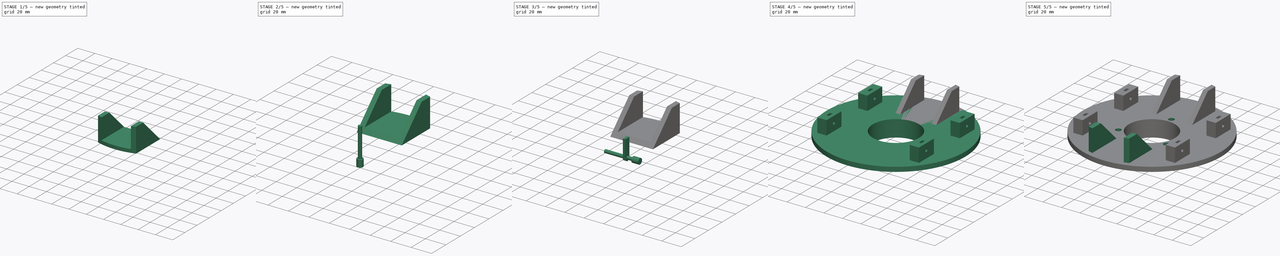
[diagram: build sequence overview — one tinted view per stage of 5, left to right]
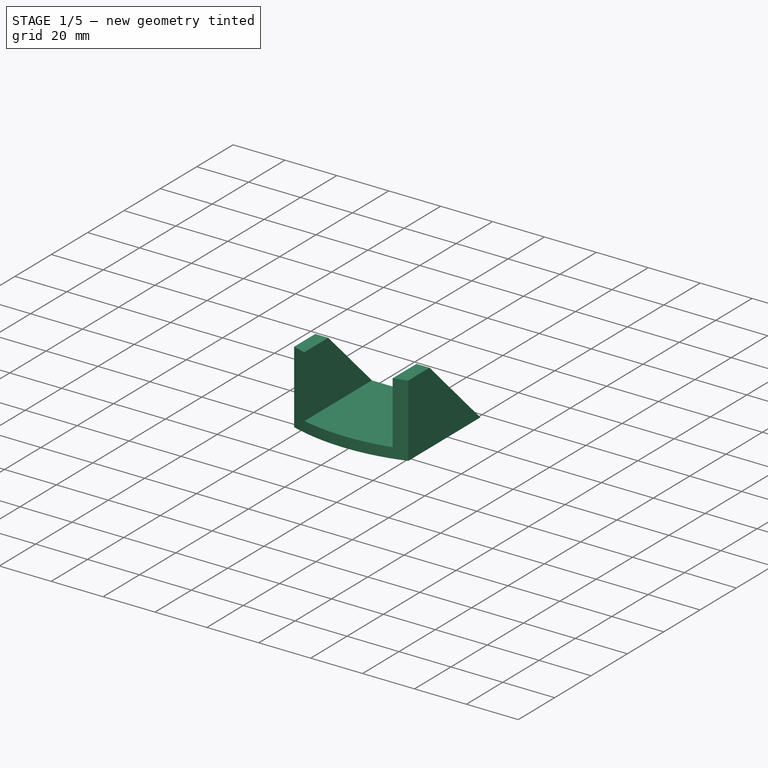
[diagram: stage 1 of 5 — iso view after this stage's code; geometry added in this stage tinted green]
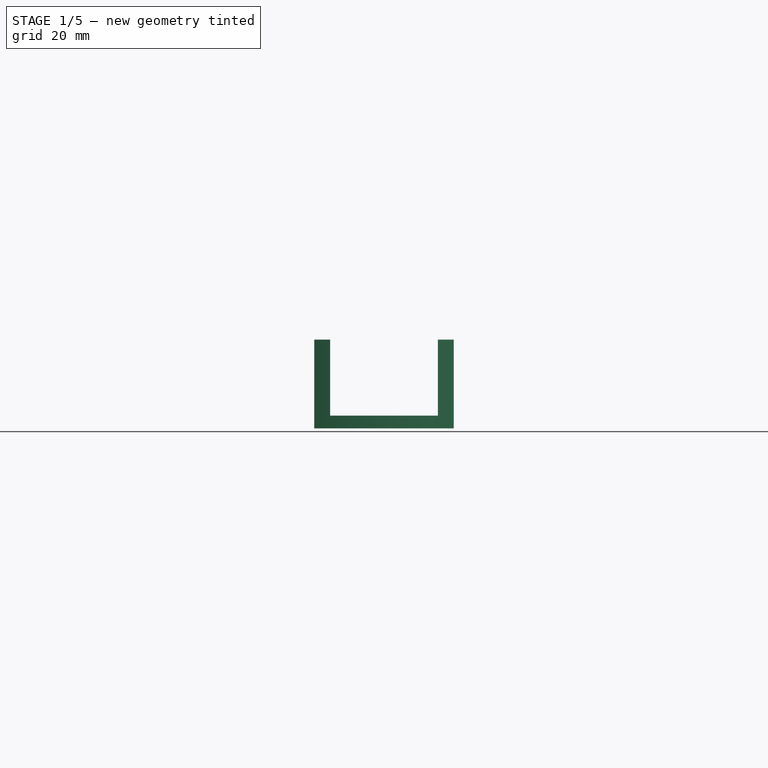
[diagram: stage 1 of 5 — front view after this stage's code; geometry added in this stage tinted green]
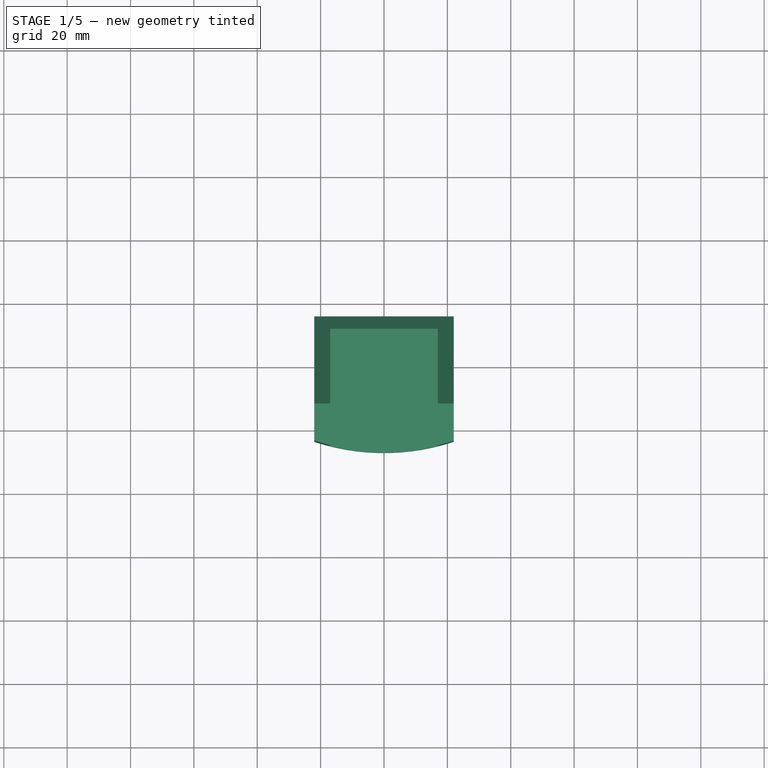
[diagram: stage 1 of 5 — top view after this stage's code; geometry added in this stage tinted green]
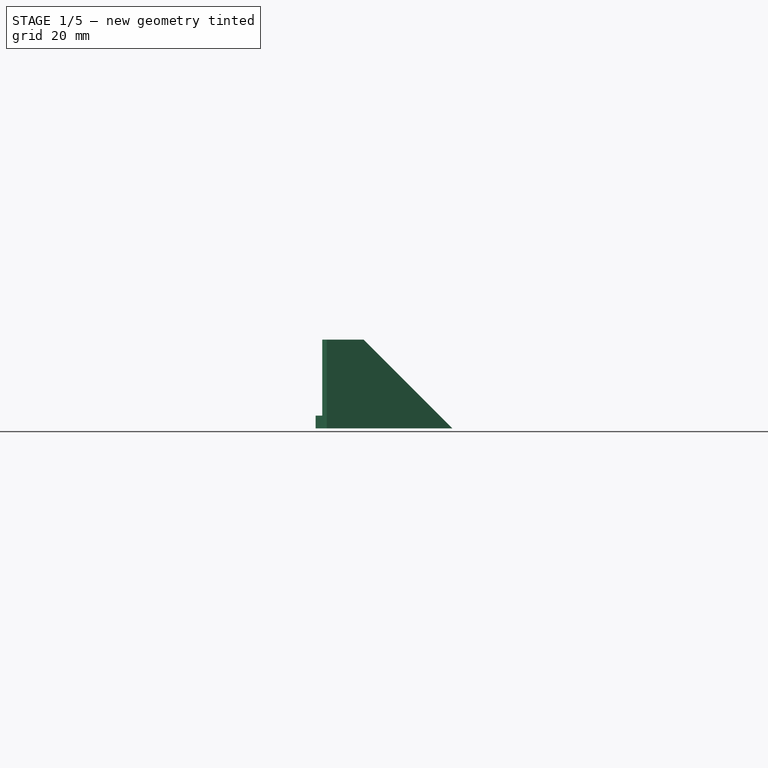
[diagram: stage 1 of 5 — right view after this stage's code; geometry added in this stage tinted green]
FCSTD DOCUMENT  (FreeCAD 0.16R6703 (Git))
Label: Art1Top
License: All rights reserved
LicenseURL: http://en.wikipedia.org/wiki/All_rights_reserved
objects: Part::FeaturePython×7, Sketcher::SketchObject×5, Part::MultiFuse×4, PartDesign::Pad×4, Part::Cylinder×2, Part::Cut×2, Part::MultiCommon×2, PartDesign::Revolution×1, Part::Box×1, App::DocumentObjectGroup×1, Part::Mirroring×1
note: 34 computed .brp shape members not serialized (recipe doc carries the construction recipe); baked Part::Feature solids carry a one-line shape summary decoded from their .brp

FEATURE [Sketcher::SketchObject] Sketch016
  Placement = pos=(0,0,0) rot=(1,0,0;1.5708rad)
  sketch-geometry (8):
    g0: LineSegment StartX=-22 StartY=28 StartZ=0 EndX=-17 EndY=28 EndZ=0
    g1: LineSegment StartX=-17 StartY=28 StartZ=0 EndX=-17 EndY=4 EndZ=0
    g2: LineSegment StartX=-17 StartY=4 StartZ=0 EndX=17 EndY=4 EndZ=0
    g3: LineSegment StartX=17 StartY=4 StartZ=0 EndX=17 EndY=28 EndZ=0
    g4: LineSegment StartX=17 StartY=28 StartZ=0 EndX=22 EndY=28 EndZ=0
    g5: LineSegment StartX=22 StartY=28 StartZ=0 EndX=22 EndY=0 EndZ=0
    g6: LineSegment StartX=22 StartY=0 StartZ=0 EndX=-22 EndY=0 EndZ=0
    g7: LineSegment StartX=-22 StartY=0 StartZ=0 EndX=-22 EndY=28 EndZ=0
  constraints (24):
    c: Horizontal(g0)
    c: Coincident(g0,g1)
    c: Vertical(g1)
    c: Coincident(g1,g2)
    c: Horizontal(g2)
    c: Coincident(g2,g3)
    c: Vertical(g3)
    c: Coincident(g3,g4)
    c: Horizontal(g4)
    c: Coincident(g4,g5)
    c: Vertical(g5)
    c: Coincident(g5,g6)
    c: PointOnObject(g6,g-1)
    c: Horizontal(g6)
    c: Coincident(g6,g7)
    c: Coincident(g7,g0)
    c: Vertical(g7)
    c: Equal(g0,g4)
    c: DistanceX(g4,g4) = 5
    c: DistanceX(g2,g2) = 34
    c: DistanceY(g3,g3) = 24
    c: Equal(g1,g3)
    c: DistanceY(g5,g5) = 28
    c: DistanceX(g6,g-1) = 22
FEATURE [PartDesign::Pad] Pad005
  Length = 50
  Length2 = 100
  Placement = pos=(0,0,0) rot=(1,0,0;1.5708rad)
  Sketch = -> Sketch016
  Type = 0
FEATURE [Sketcher::SketchObject] Sketch017
  sketch-geometry (4):
    g0: LineSegment StartX=-22 StartY=0 StartZ=0 EndX=22 EndY=0 EndZ=0
    g1: LineSegment StartX=22 StartY=0 StartZ=0 EndX=22 EndY=-43.453 EndZ=0
    g2: LineSegment StartX=-22 StartY=-43.453 StartZ=0 EndX=-22 EndY=0 EndZ=0
    g3: ArcOfCircle CenterX=0 CenterY=23 CenterZ=0 NormalX=0 NormalY=0 NormalZ=1 Radius=70 StartAngle=4.39268 EndAngle=5.03209
  constraints (13):
    c: Coincident(g0,g1)
    c: Coincident(g2,g0)
    c: Horizontal(g0)
    c: Vertical(g1)
    c: Vertical(g2)
    c: PointOnObject(g0,g-1)
    c: PointOnObject(g3,g-2)
    c: Coincident(g3,g2)
    c: Coincident(g3,g1)
    c: Equal(g1,g2)
    c: DistanceX(g0,g0) = 44
    c: Radius(g3) = 70
    c: DistanceY(g-1,g3) = 23
FEATURE [PartDesign::Pad] Pad006
  Length = 28
  Length2 = 100
  Sketch = -> Sketch017
  Type = 0
FEATURE [Part::MultiCommon] Common002
  Shapes = -> [Pad005,Pad006]
FEATURE [Sketcher::SketchObject] Sketch018
  Placement = pos=(0,0,0) rot=(0.57735,0.57735,0.57735;2.0944rad)
  sketch-geometry (4):
    g0: LineSegment StartX=-50 StartY=0 StartZ=0 EndX=-50 EndY=28 EndZ=0
    g1: LineSegment StartX=-50 StartY=28 StartZ=0 EndX=-31.8 EndY=28 EndZ=0
    g2: LineSegment StartX=-31.8 StartY=28 StartZ=0 EndX=-3.8 EndY=0 EndZ=0
    g3: LineSegment StartX=-50 StartY=0 StartZ=0 EndX=-3.8 EndY=0 EndZ=0
  constraints (12):
    c: Coincident(g0,g1)
    c: Horizontal(g1)
    c: Vertical(g0)
    c: Coincident(g1,g2)
    c: DistanceY(g0,g0) = 28
    c: DistanceX(g0,g-1) = 50
    c: Coincident(g3,g2)
    c: Horizontal(g3)
    c: Coincident(g3,g0)
    c: PointOnObject(g2,g-1)
    c: Angle(g2,g3) = 0.785398
    c: DistanceX(g3,g3) = 46.2
FEATURE [PartDesign::Pad] Pad007
  Length = 44
  Length2 = 100
  Midplane = true
  Placement = pos=(0,0,0) rot=(0.57735,0.57735,0.57735;2.0944rad)
  Sketch = -> Sketch018
  Type = 0
FEATURE [Part::MultiCommon] Common003  label="FanSupport"
  Shapes = -> [Pad007,Common002]
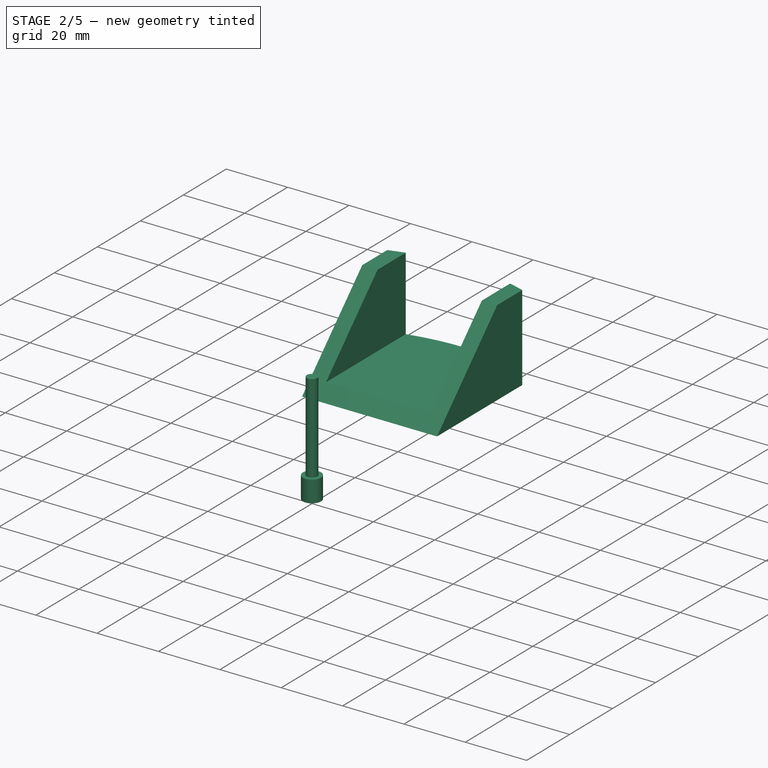
[diagram: stage 2 of 5 — iso view after this stage's code; geometry added in this stage tinted green]
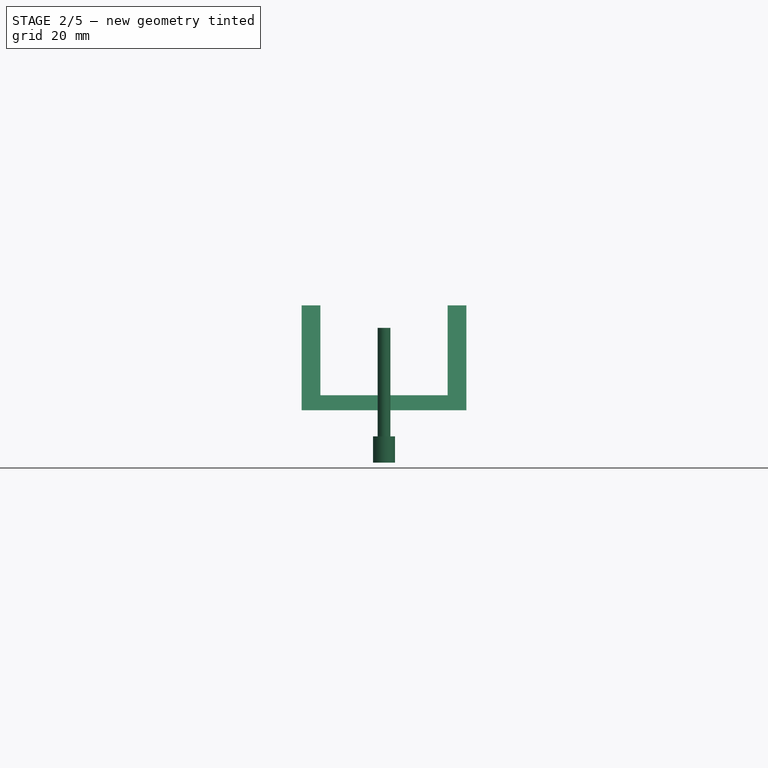
[diagram: stage 2 of 5 — front view after this stage's code; geometry added in this stage tinted green]
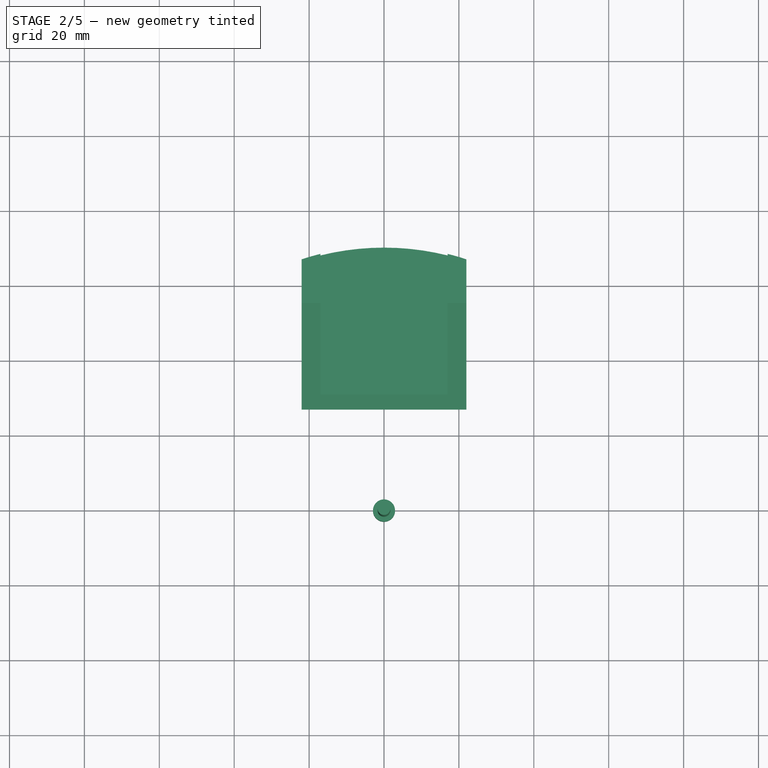
[diagram: stage 2 of 5 — top view after this stage's code; geometry added in this stage tinted green]
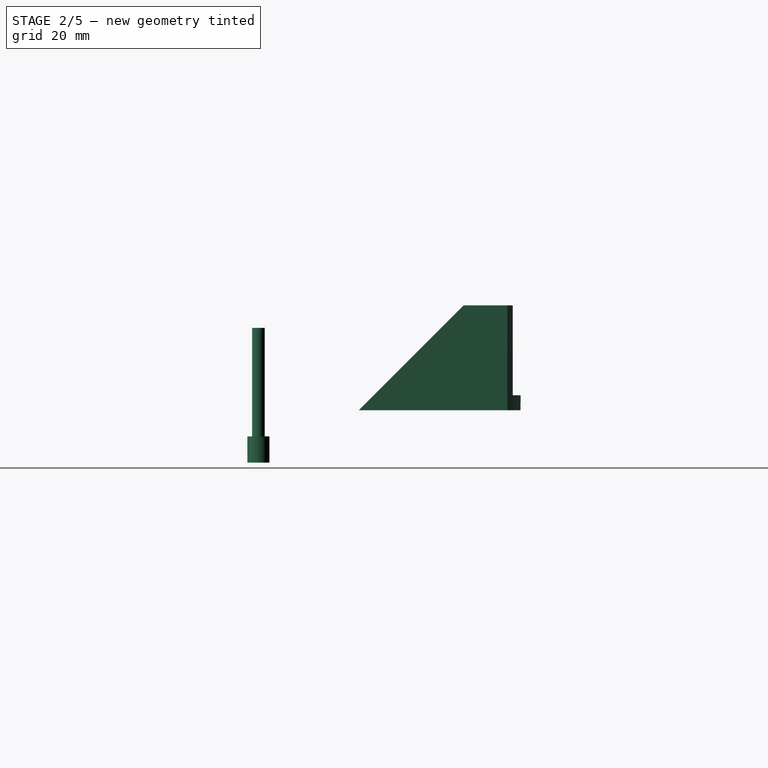
[diagram: stage 2 of 5 — right view after this stage's code; geometry added in this stage tinted green]
FEATURE [Part::Cylinder] Cylinder  label="M3BoltHead"
  Angle = 360
  Height = 7
  Radius = 2.95
FEATURE [Part::Cylinder] Cylinder001  label="M3BoltBody"
  Angle = 360
  Height = 30
  Placement = pos=(0,0,6) rot=(0,0,1;0rad)
  Radius = 1.7
FEATURE [Part::MultiFuse] Fusion  label="M3Bolt"
  Shapes = -> [Cylinder001,Cylinder]
FEATURE [App::DocumentObjectGroup] Group  label="Master"
  Group = -> [Fusion,Pad002,Cut014,Common003]
FEATURE [Part::FeaturePython] Clone  label="Clone of FanSupport"  # Draft clone (typed FeaturePython)
  Objects = -> [Common003]
  Placement = pos=(0,-23,14) rot=(0,0,1;0rad)
  Scale = (1,1,1)
FEATURE [Part::Mirroring] Part__Mirroring  label="Clone of FanSupport (Mirror #1)"
  Base = (0,0,0)
  Normal = (0,1,0)
  Source = -> Clone
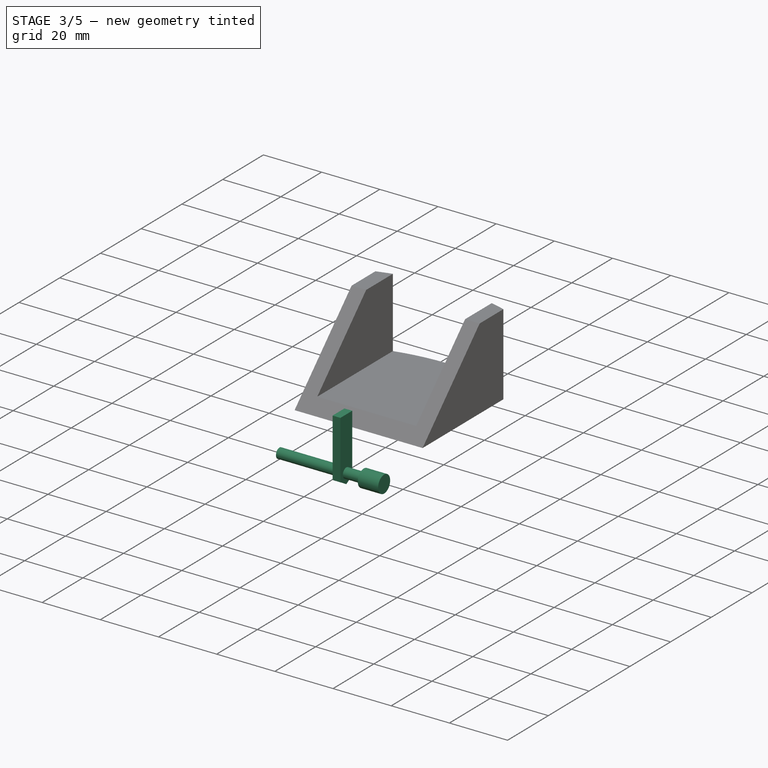
[diagram: stage 3 of 5 — iso view after this stage's code; geometry added in this stage tinted green]
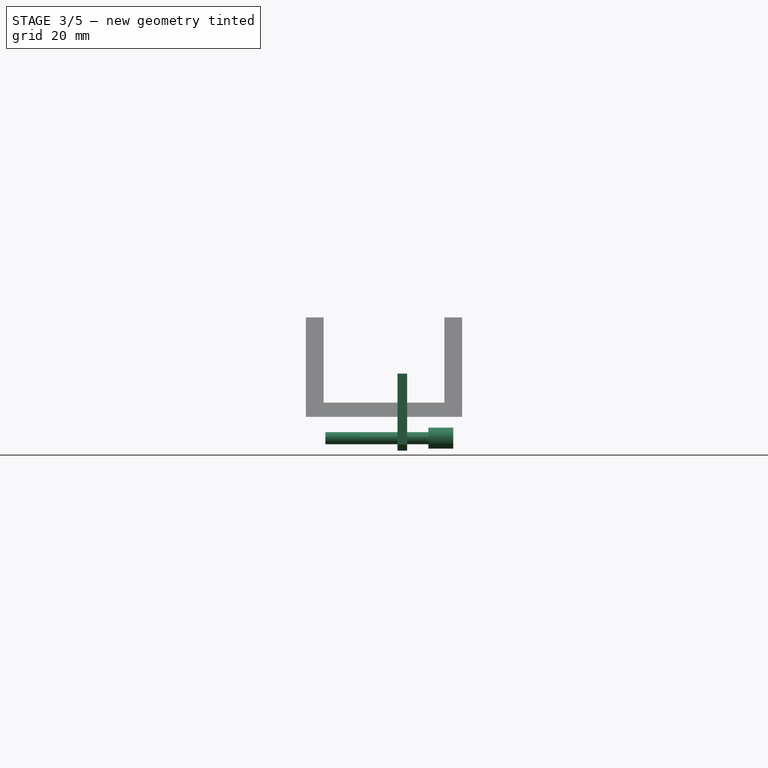
[diagram: stage 3 of 5 — front view after this stage's code; geometry added in this stage tinted green]
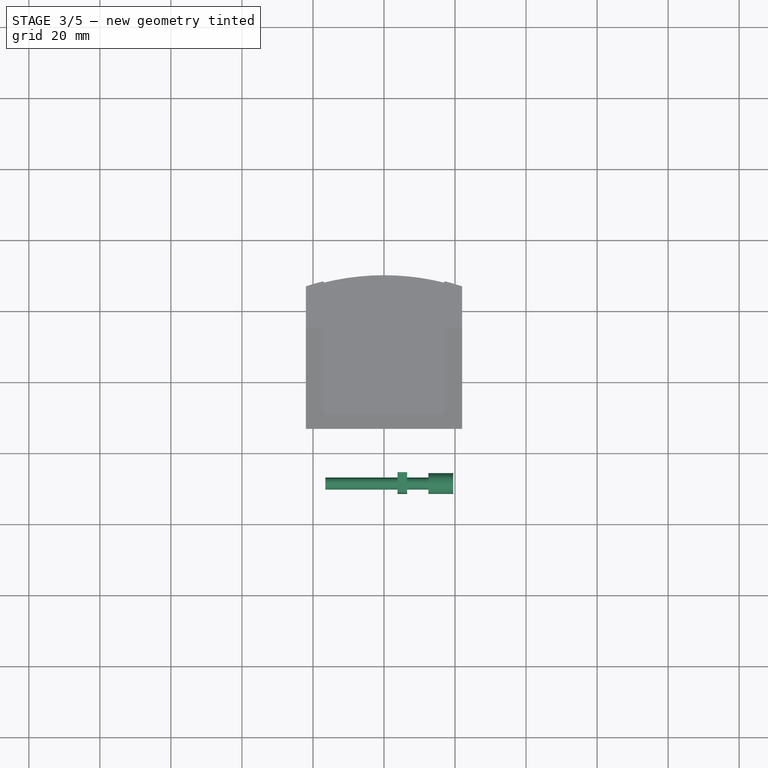
[diagram: stage 3 of 5 — top view after this stage's code; geometry added in this stage tinted green]
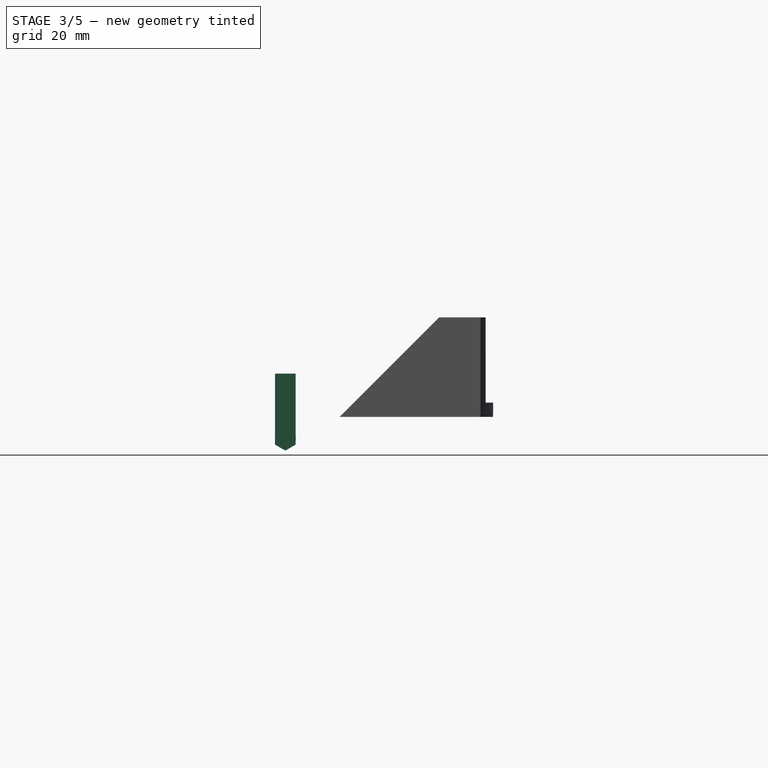
[diagram: stage 3 of 5 — right view after this stage's code; geometry added in this stage tinted green]
FEATURE [Sketcher::SketchObject] Sketch003  label="M3NutHousingSketch"
  sketch-geometry (5):
    g0: LineSegment StartX=0 StartY=0 StartZ=0 EndX=1.67432 EndY=2.9 EndZ=0
    g1: LineSegment StartX=1.67432 StartY=2.9 StartZ=0 EndX=21.6743 EndY=2.9 EndZ=0
    g2: LineSegment StartX=21.6743 StartY=2.9 StartZ=0 EndX=21.6743 EndY=-2.9 EndZ=0
    g3: LineSegment StartX=21.6743 StartY=-2.9 StartZ=0 EndX=1.67432 EndY=-2.9 EndZ=0
    g4: LineSegment StartX=1.67432 StartY=-2.9 StartZ=0 EndX=0 EndY=0 EndZ=0
  constraints (14):
    c: Coincident(g-1,g0)
    c: Coincident(g0,g1)
    c: Horizontal(g1)
    c: Coincident(g1,g2)
    c: Vertical(g2)
    c: Coincident(g2,g3)
    c: Horizontal(g3)
    c: Coincident(g3,g4)
    c: Coincident(g4,g0)
    c: Equal(g3,g1)
    c: Equal(g4,g0)
    c: DistanceY(g2) = -5.8
    c: Angle(g-1,g0) = 1.0472
    c: DistanceX(g3) = -20
FEATURE [PartDesign::Pad] Pad002  label="M3NutHousing"
  Length = 2.7
  Length2 = 100
  Sketch = -> Sketch003
  Type = 0
FEATURE [Part::FeaturePython] Clone029  label="Clone of M3NutHousing006"  # Draft clone (typed FeaturePython)
  Objects = -> [Pad002]
  Placement = pos=(6.5,11.5,4.5) rot=(0,-1,0;1.5708rad)
  Scale = (1,1,1)
FEATURE [Part::FeaturePython] Clone030  label="Clone of M3Bolt013"  # Draft clone (typed FeaturePython)
  Objects = -> [Fusion]
  Placement = pos=(19.5,11.5,8) rot=(0,-1,0;1.5708rad)
  Scale = (1,1,1)
FEATURE [Part::MultiFuse] Fusion012
  Shapes = -> [Clone030,Clone029]
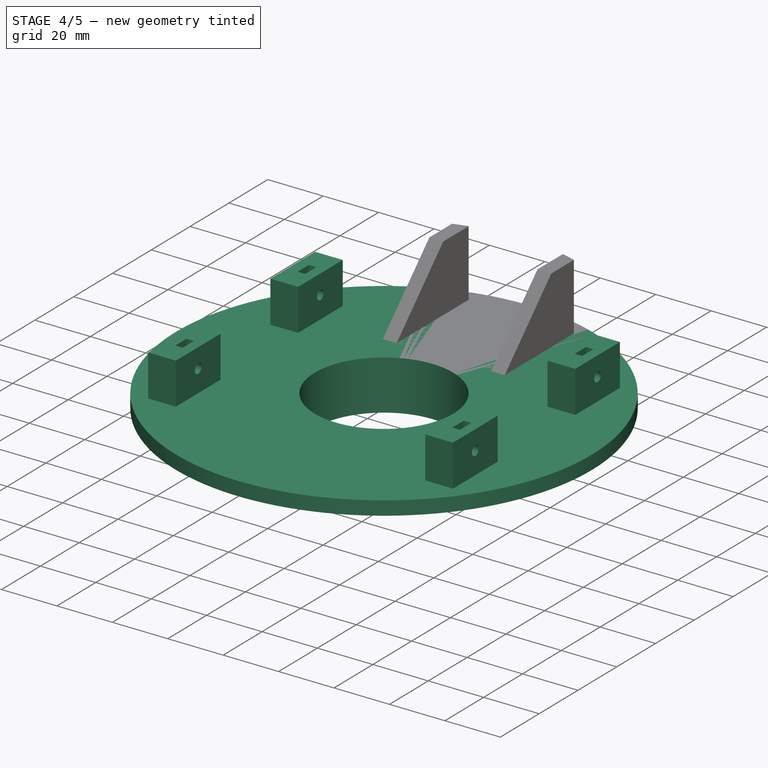
[diagram: stage 4 of 5 — iso view after this stage's code; geometry added in this stage tinted green]
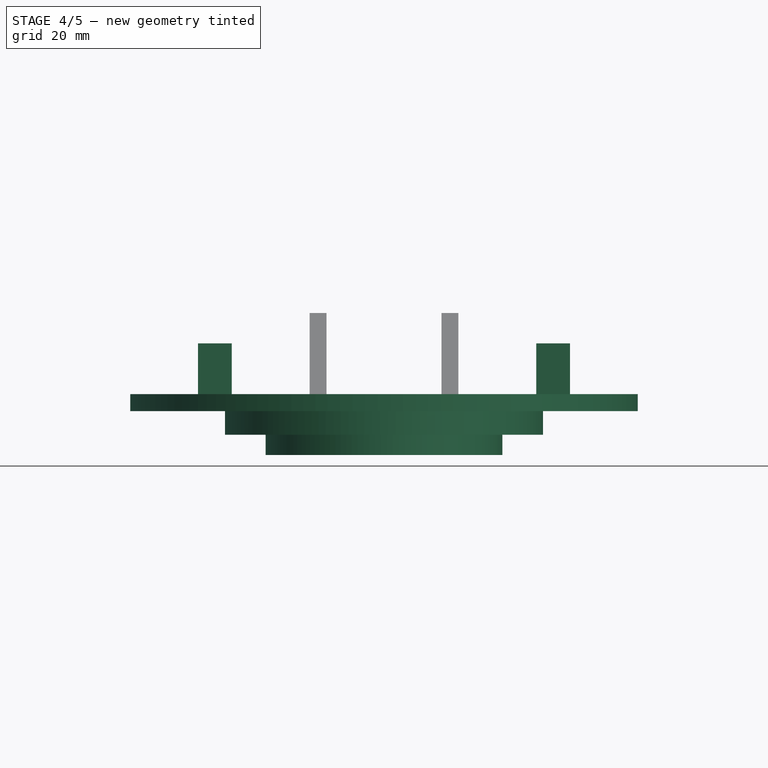
[diagram: stage 4 of 5 — front view after this stage's code; geometry added in this stage tinted green]
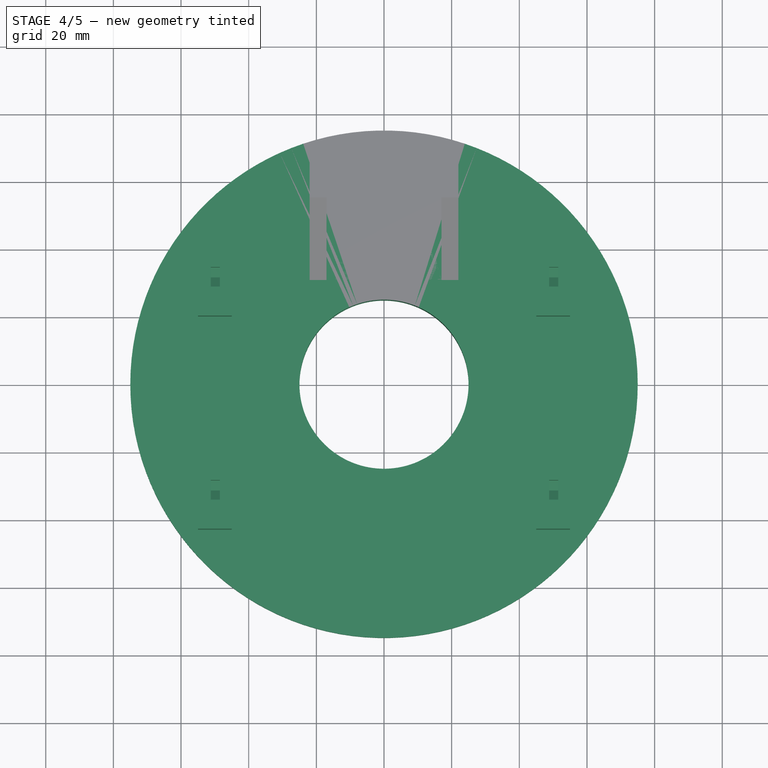
[diagram: stage 4 of 5 — top view after this stage's code; geometry added in this stage tinted green]
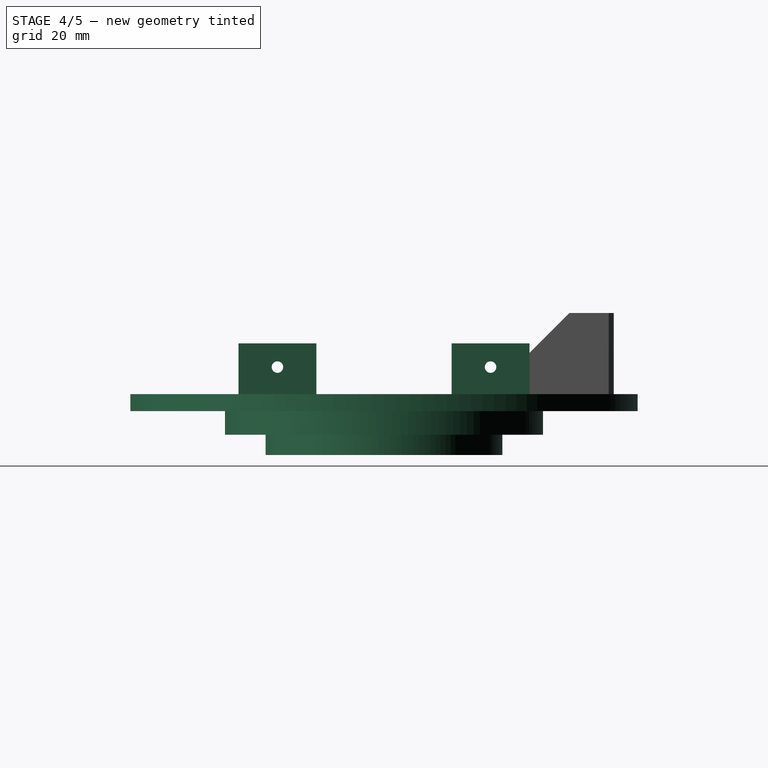
[diagram: stage 4 of 5 — right view after this stage's code; geometry added in this stage tinted green]
FEATURE [Sketcher::SketchObject] Sketch008
  Placement = pos=(0,0,0) rot=(1,0,0;1.5708rad)
  sketch-geometry (8):
    g0: LineSegment StartX=25 StartY=0 StartZ=0 EndX=35 EndY=0 EndZ=0
    g1: LineSegment StartX=35 StartY=0 StartZ=0 EndX=35 EndY=6 EndZ=0
    g2: LineSegment StartX=35 StartY=6 StartZ=0 EndX=47 EndY=6 EndZ=0
    g3: LineSegment StartX=47 StartY=6 StartZ=0 EndX=47 EndY=13 EndZ=0
    g4: LineSegment StartX=47 StartY=13 StartZ=0 EndX=75 EndY=13 EndZ=0
    g5: LineSegment StartX=75 StartY=13 StartZ=0 EndX=75 EndY=18 EndZ=0
    g6: LineSegment StartX=75 StartY=18 StartZ=0 EndX=25 EndY=18 EndZ=0
    g7: LineSegment StartX=25 StartY=18 StartZ=0 EndX=25 EndY=0 EndZ=0
  constraints (24):
    c: PointOnObject(g0,g-1)
    c: Horizontal(g0)
    c: Coincident(g0,g1)
    c: Vertical(g1)
    c: Coincident(g1,g2)
    c: Horizontal(g2)
    c: Coincident(g2,g3)
    c: Vertical(g3)
    c: Coincident(g3,g4)
    c: Horizontal(g4)
    c: Coincident(g4,g5)
    c: Vertical(g5)
    c: Coincident(g5,g6)
    c: Horizontal(g6)
    c: Coincident(g6,g7)
    c: Coincident(g7,g0)
    c: Vertical(g7)
    c: DistanceX(g-1,g0) = 25
    c: DistanceX(g-1,g0) = 35
    c: DistanceX(g-1,g2) = 47
    c: DistanceX(g-1,g4) = 75
    c: DistanceY(g1) = 6
    c: DistanceY(g3) = 7
    c: DistanceY(g5) = 5
FEATURE [PartDesign::Revolution] Revolution001
  Angle = 360
  Axis = (0,0,1)
  Base = (0,0,0)
  Placement = pos=(0,0,0) rot=(1,0,0;1.5708rad)
  ReferenceAxis = -> Sketch008 [V_Axis]
  Reversed = true
  Sketch = -> Sketch008
FEATURE [Part::Box] Box003  label="Cube003"
  Height = 15
  Length = 10
  Width = 23
FEATURE [Part::Cut] Cut014  label="Art1TopFixMaster"
  Base = -> Box003
  Tool = -> Fusion012
FEATURE [Part::FeaturePython] Clone031  label="Clone of Art1TopFixMaster"  # Draft clone (typed FeaturePython)
  Objects = -> [Cut014]
  Placement = pos=(45,20,18) rot=(0,0,1;0rad)
  Scale = (1,1,1)
FEATURE [Part::FeaturePython] Array004  # Draft array (typed FeaturePython)
  Angle = 360
  ArrayType = 0
  Axis = (0,0,1)
  Base = -> Clone031
  Center = (0,0,0)
  Fuse = false
  IntervalAxis = (0,0,0)
  IntervalX = (-100,0,0)
  IntervalY = (0,-63,0)
  IntervalZ = (0,0,0)
  NumberPolar = 1
  NumberX = 2
  NumberY = 2
  NumberZ = 1
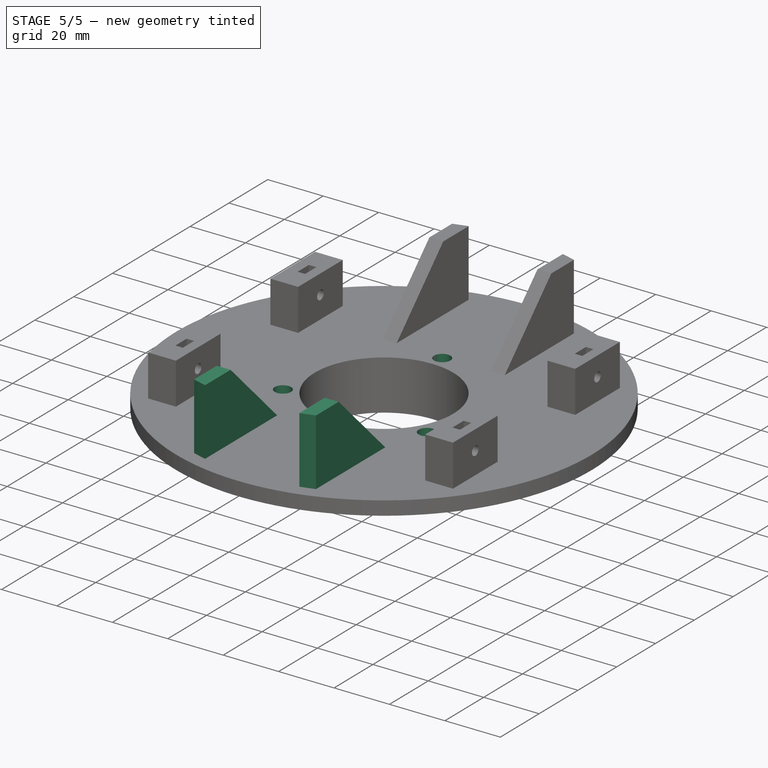
[diagram: stage 5 of 5 — iso view after this stage's code; geometry added in this stage tinted green]
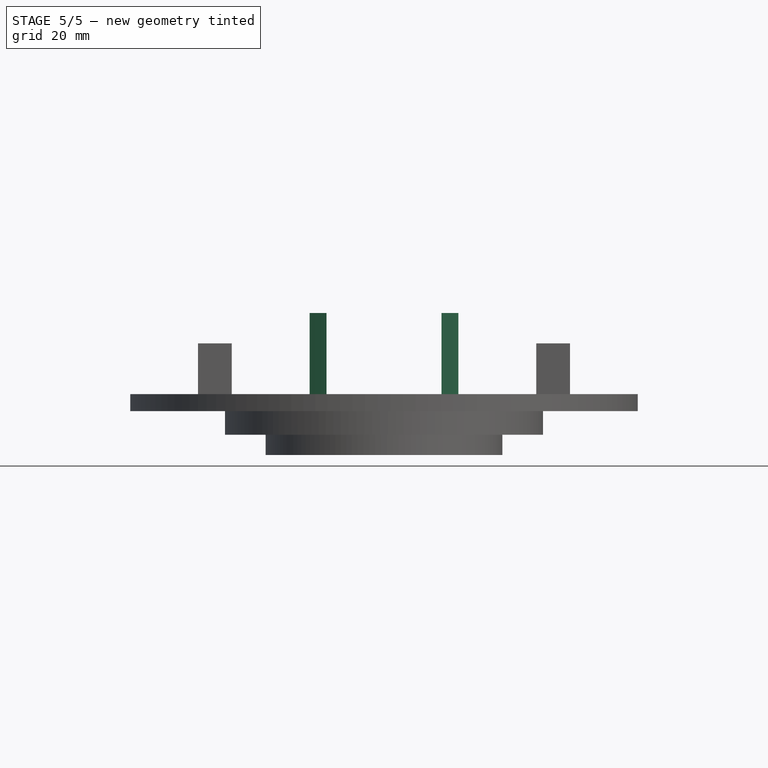
[diagram: stage 5 of 5 — front view after this stage's code; geometry added in this stage tinted green]
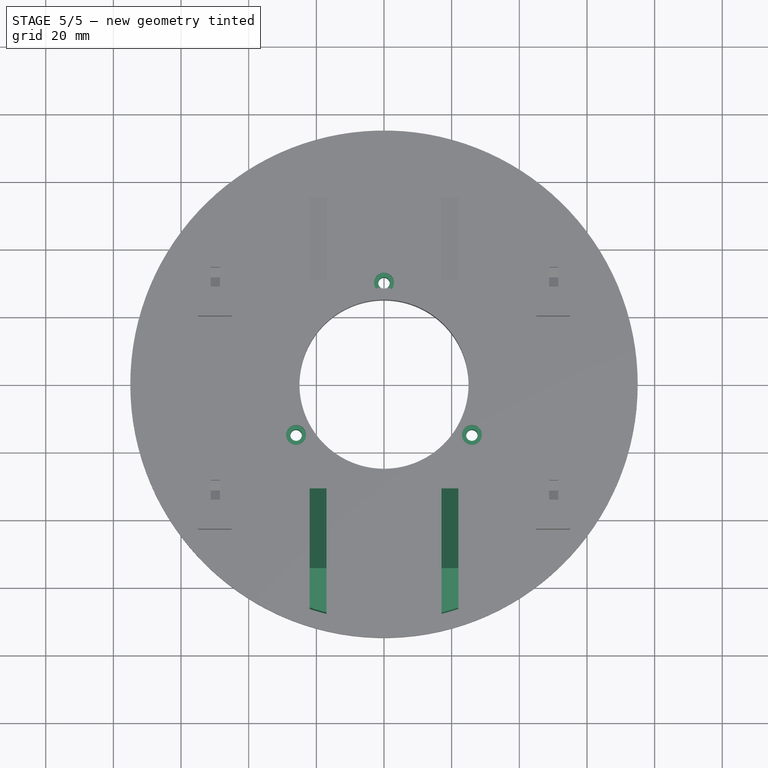
[diagram: stage 5 of 5 — top view after this stage's code; geometry added in this stage tinted green]
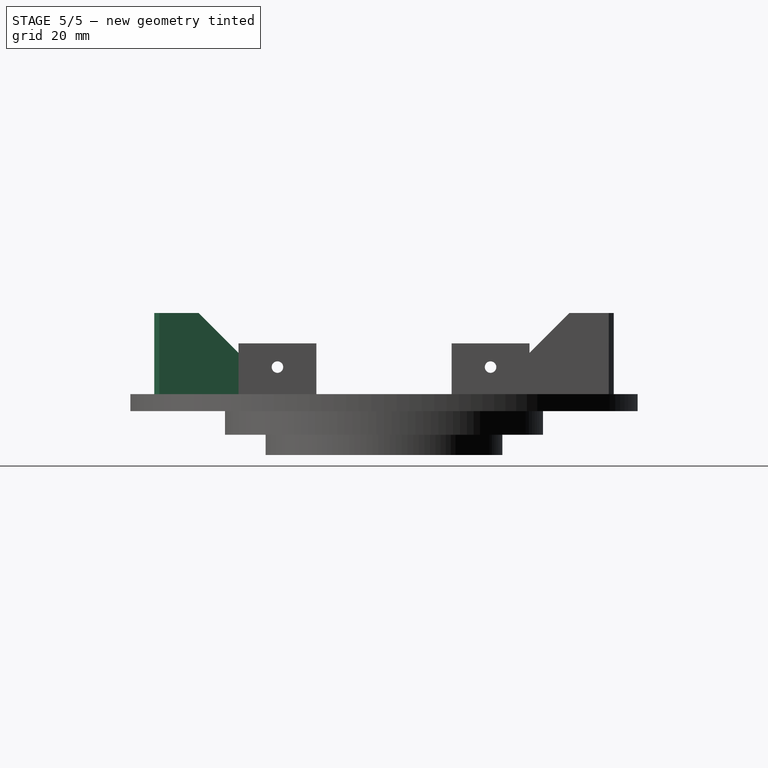
[diagram: stage 5 of 5 — right view after this stage's code; geometry added in this stage tinted green]
FEATURE [Part::MultiFuse] Fusion013
  Shapes = -> [Revolution001,Array004]
FEATURE [Part::FeaturePython] Clone032  label="Clone of M3Bolt014"  # Draft clone (typed FeaturePython)
  Objects = -> [Fusion]
  Placement = pos=(0,30,22) rot=(1,0,0;3.14159rad)
  Scale = (1,1,1)
FEATURE [Part::FeaturePython] Array005  # Draft array (typed FeaturePython)
  Angle = 360
  ArrayType = 1
  Axis = (0,0,1)
  Base = -> Clone032
  Center = (0,0,0)
  Fuse = false
  IntervalAxis = (0,0,0)
  IntervalX = (1,0,0)
  IntervalY = (0,1,0)
  IntervalZ = (0,0,0)
  NumberPolar = 3
  NumberX = 2
  NumberY = 2
  NumberZ = 1
FEATURE [Part::MultiFuse] Fusion014
  Shapes = -> [Fusion013,Part__Mirroring,Clone]
FEATURE [Part::Cut] Cut  label="Art1Top"
  Base = -> Fusion014
  Tool = -> Array005
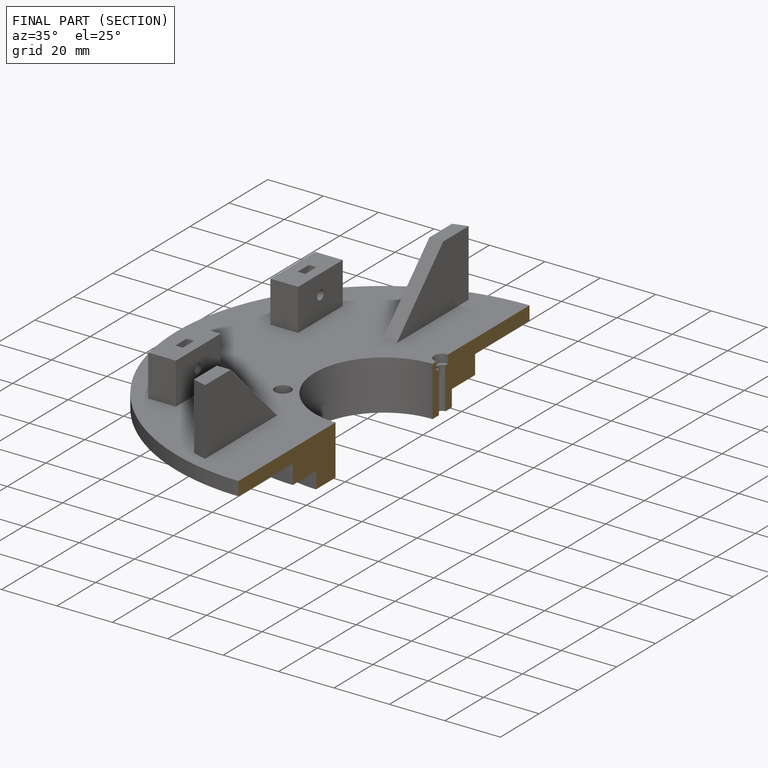
[diagram: finished part — half-section view (interior)]
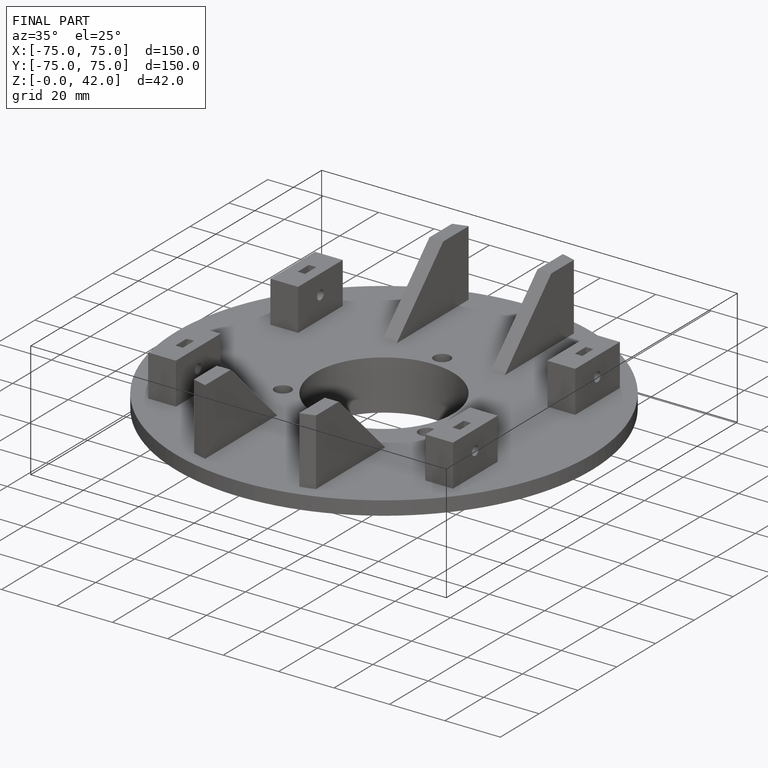
[diagram: finished part — iso view with bounding-box wireframe]
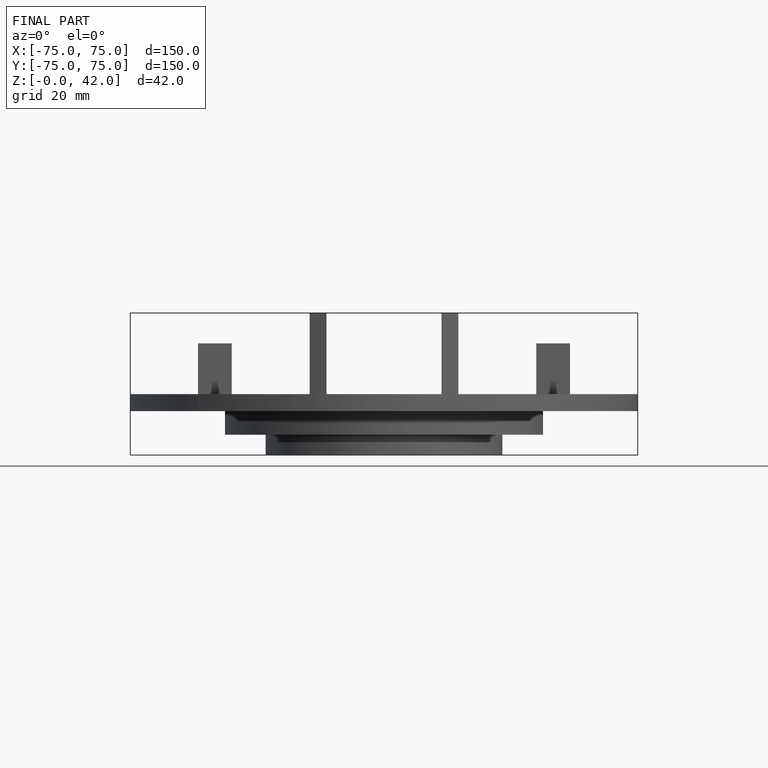
[diagram: finished part — front view with bounding-box wireframe]
